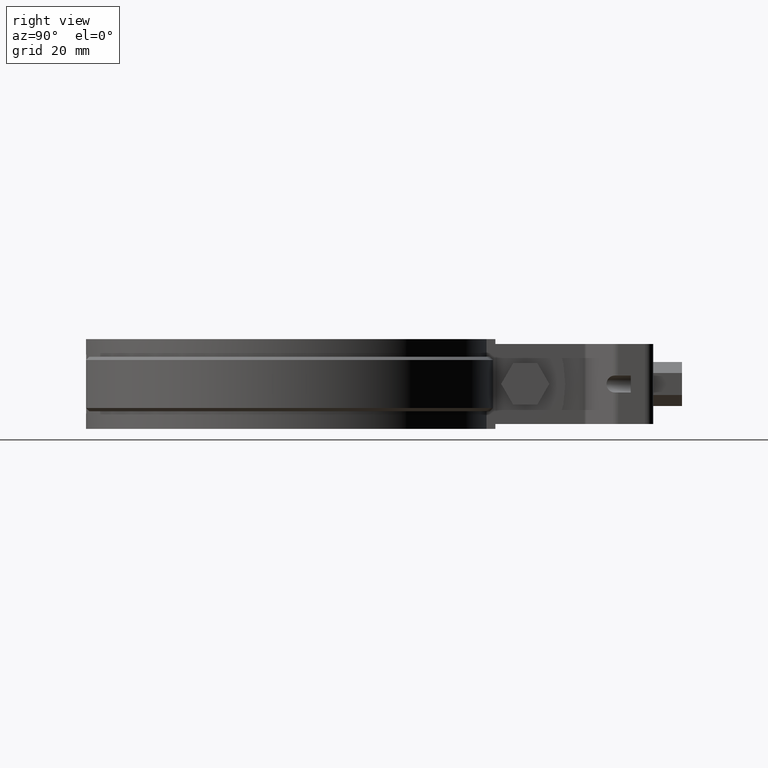
[diagram: clean part render]
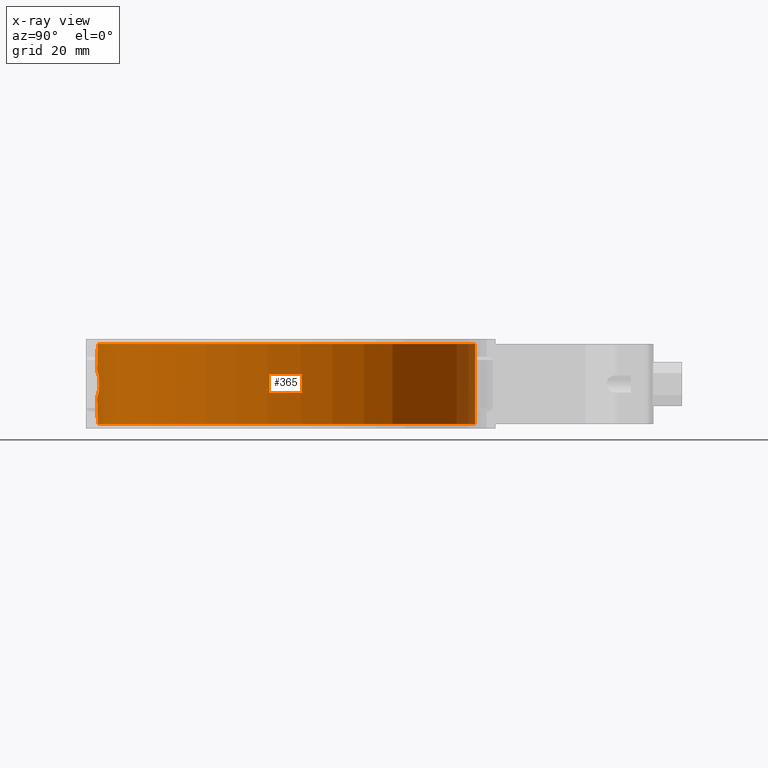
[diagram: x-ray — body ghosted, one internal face saturated and labeled with its STEP entity id]
A machine part, right view, then the same camera in x-ray: the body is ghosted and one INTERNAL B-rep face — a face not visible from any outside direction — is saturated and labeled: STEP entity #365.
In plain terms, the highlighted cylindrical surface (partial cylindrical patch) has radius 59.15 mm, axis along (0, 0, -1).
Its self-contained STEP definition (entity closure, byte-faithful):
#365 = ADVANCED_FACE( '', ( #632, #633 ), #634, .T. );
#632 = FACE_OUTER_BOUND( '', #1358, .T. );
#633 = FACE_BOUND( '', #1359, .T. );
#634 = CYLINDRICAL_SURFACE( '', #1360, 59.1500000000000 );
#1358 = EDGE_LOOP( '', ( #2832, #2833, #2834, #2835 ) );
#1359 = EDGE_LOOP( '', ( #2836, #2837, #2838, #2839, #2840, #2841, #2842, #2843, #2844, #2845, #2846, #2847, #2848, #2849, #2850, #2851 ) );
#1360 = AXIS2_PLACEMENT_3D( '', #2852, #2853, #2854 );
#2832 = ORIENTED_EDGE( '', *, *, #4294, .F. );
#2833 = ORIENTED_EDGE( '', *, *, #4306, .T. );
#2834 = ORIENTED_EDGE( '', *, *, #4307, .T. );
#2835 = ORIENTED_EDGE( '', *, *, #4300, .F. );
#2836 = ORIENTED_EDGE( '', *, *, #4308, .F. );
#2837 = ORIENTED_EDGE( '', *, *, #4309, .F. );
#2838 = ORIENTED_EDGE( '', *, *, #4310, .F. );
#2839 = ORIENTED_EDGE( '', *, *, #4311, .F. );
#2840 = ORIENTED_EDGE( '', *, *, #4312, .F. );
#2841 = ORIENTED_EDGE( '', *, *, #4313, .F. );
#2842 = ORIENTED_EDGE( '', *, *, #4314, .F. );
#2843 = ORIENTED_EDGE( '', *, *, #4315, .F. );
#2844 = ORIENTED_EDGE( '', *, *, #4316, .F. );
#2845 = ORIENTED_EDGE( '', *, *, #4317, .F. );
#2846 = ORIENTED_EDGE( '', *, *, #4318, .F. );
#2847 = ORIENTED_EDGE( '', *, *, #4319, .F. );
#2848 = ORIENTED_EDGE( '', *, *, #4320, .F. );
#2849 = ORIENTED_EDGE( '', *, *, #4321, .F. );
#2850 = ORIENTED_EDGE( '', *, *, #4322, .F. );
#2851 = ORIENTED_EDGE( '', *, *, #4323, .F. );
#2852 = CARTESIAN_POINT( '', ( 0.000000000000000, 3.46944695195361E-014, -14.0000000000000 ) );
#2853 = DIRECTION( '', ( 0.000000000000000, 0.000000000000000, -1.00000000000000 ) );
#2854 = DIRECTION( '', ( -0.0845308537616220, -0.996420862267712, 0.000000000000000 ) );
#4294 = EDGE_CURVE( '', #4952, #4954, #4955, .T. );
#4300 = EDGE_CURVE( '', #4954, #4965, #4966, .T. );
#4306 = EDGE_CURVE( '', #4952, #4975, #4976, .T. );
#4307 = EDGE_CURVE( '', #4975, #4965, #4977, .T. );
#4308 = EDGE_CURVE( '', #4978, #4979, #4980, .T. );
#4309 = EDGE_CURVE( '', #4981, #4978, #4982, .F. );
#4310 = EDGE_CURVE( '', #4983, #4981, #4984, .T. );
#4311 = EDGE_CURVE( '', #4985, #4983, #4986, .F. );
#4312 = EDGE_CURVE( '', #4987, #4985, #4988, .T. );
#4313 = EDGE_CURVE( '', #4989, #4987, #4990, .F. );
#4314 = EDGE_CURVE( '', #4991, #4989, #4992, .T. );
#4315 = EDGE_CURVE( '', #4993, #4991, #4994, .F. );
#4316 = EDGE_CURVE( '', #4995, #4993, #4996, .T. );
#4317 = EDGE_CURVE( '', #4997, #4995, #4998, .F. );
#4318 = EDGE_CURVE( '', #4999, #4997, #5000, .T. );
#4319 = EDGE_CURVE( '', #5001, #4999, #5002, .F. );
#4320 = EDGE_CURVE( '', #5003, #5001, #5004, .T. );
#4321 = EDGE_CURVE( '', #5005, #5003, #5006, .F. );
#4322 = EDGE_CURVE( '', #5007, #5005, #5008, .T. );
#4323 = EDGE_CURVE( '', #4979, #5007, #5009, .F. );
#4952 = VERTEX_POINT( '', #7057 );
#4954 = VERTEX_POINT( '', #7059 );
#4955 = LINE( '', #7060, #7061 );
#4965 = VERTEX_POINT( '', #7089 );
#4966 = CIRCLE( '', #7090, 59.1500000000000 );
#4975 = VERTEX_POINT( '', #7102 );
#4976 = CIRCLE( '', #7103, 59.1500000000000 );
#4977 = LINE( '', #7104, #7105 );
#4978 = VERTEX_POINT( '', #7106 );
#4979 = VERTEX_POINT( '', #7107 );
#4980 = B_SPLINE_CURVE_WITH_KNOTS( '', 3, ( #7108, #7109, #7110, #7111, #7112, #7113, #7114, #7115, #7116, #7117, #7118, #7119, #7120, #7121, #7122, #7123, #7124, #7125, #7126, #7127, #7128, #7129, #7130, #7131, #7132, #7133, #7134, #7135, #7136, #7137, #7138, #7139, #7140, #7141 ), .UNSPECIFIED., .F., .F., ( 4, 2, 2, 2, 2, 2, 2, 2, 2, 2, 2, 2, 2, 2, 2, 2, 4 ), ( 9.69739903612216E-018, 0.000685840484445844, 0.00137168096889168, 0.00205752145333751, 0.00274336193778335, 0.00342920242222918, 0.00411504290667501, 0.00480088339112085, 0.00548672387556668, 0.00617256436001252, 0.00685840484445836, 0.00754424532890419, 0.00823008581335003, 0.00891592629779586, 0.00960176678224170, 0.0102876072666875, 0.0109734477511334 ), .UNSPECIFIED. );
#4981 = VERTEX_POINT( '', #7142 );
#4982 = CIRCLE( '', #7143, 59.1500000000000 );
#4983 = VERTEX_POINT( '', #7144 );
#4984 = B_SPLINE_CURVE_WITH_KNOTS( '', 3, ( #7145, #7146, #7147, #7148, #7149, #7150 ), .UNSPECIFIED., .F., .F., ( 4, 2, 4 ), ( 0.000000000000000, 0.000335831481587550, 0.000671662963175100 ), .UNSPECIFIED. );
#4985 = VERTEX_POINT( '', #7151 );
#4986 = ELLIPSE( '', #7152, 269.461386027856, 59.1500000000000 );
#4987 = VERTEX_POINT( '', #7153 );
#4988 = B_SPLINE_CURVE_WITH_KNOTS( '', 3, ( #7154, #7155, #7156, #7157, #7158, #7159, #7160, #7161, #7162, #7163 ), .UNSPECIFIED., .F., .F., ( 4, 2, 2, 2, 4 ), ( 0.000000000000000, 0.000671559393518246, 0.00134311878703649, 0.00201467818055474, 0.00268623757407299 ), .UNSPECIFIED. );
#4989 = VERTEX_POINT( '', #7164 );
#4990 = ELLIPSE( '', #7165, 269.461248569451, 59.1500000000000 );
#4991 = VERTEX_POINT( '', #7166 );
#4992 = B_SPLINE_CURVE_WITH_KNOTS( '', 3, ( #7167, #7168, #7169, #7170, #7171, #7172 ), .UNSPECIFIED., .F., .F., ( 4, 2, 4 ), ( 0.000000000000000, 0.000335830453991692, 0.000671660907983384 ), .UNSPECIFIED. );
#4993 = VERTEX_POINT( '', #7173 );
#4994 = CIRCLE( '', #7174, 59.1500000000000 );
#4995 = VERTEX_POINT( '', #7175 );
#4996 = B_SPLINE_CURVE_WITH_KNOTS( '', 3, ( #7176, #7177, #7178, #7179, #7180, #7181, #7182, #7183, #7184, #7185, #7186, #7187, #7188, #7189, #7190, #7191, #7192, #7193, #7194, #7195, #7196, #7197, #7198, #7199, #7200, #7201, #7202, #7203, #7204, #7205, #7206, #7207, #7208, #7209 ), .UNSPECIFIED., .F., .F., ( 4, 2, 2, 2, 2, 2, 2, 2, 2, 2, 2, 2, 2, 2, 2, 2, 4 ), ( 0.000000000000000, 0.000685840484445824, 0.00137168096889165, 0.00205752145333747, 0.00274336193778330, 0.00342920242222912, 0.00411504290667495, 0.00480088339112077, 0.00548672387556660, 0.00617256436001242, 0.00685840484445824, 0.00754424532890407, 0.00823008581334989, 0.00891592629779571, 0.00960176678224154, 0.0102876072666874, 0.0109734477511332 ), .UNSPECIFIED. );
#4997 = VERTEX_POINT( '', #7210 );
#4998 = CIRCLE( '', #7211, 59.1500000000000 );
#4999 = VERTEX_POINT( '', #7212 );
#5000 = B_SPLINE_CURVE_WITH_KNOTS( '', 3, ( #7213, #7214, #7215, #7216, #7217, #7218 ), .UNSPECIFIED., .F., .F., ( 4, 2, 4 ), ( 0.000000000000000, 0.000335831481587561, 0.000671662963175122 ), .UNSPECIFIED. );
#5001 = VERTEX_POINT( '', #7219 );
#5002 = ELLIPSE( '', #7220, 269.461386027932, 59.1500000000000 );
#5003 = VERTEX_POINT( '', #7221 );
#5004 = B_SPLINE_CURVE_WITH_KNOTS( '', 3, ( #7222, #7223, #7224, #7225, #7226, #7227, #7228, #7229, #7230, #7231 ), .UNSPECIFIED., .F., .F., ( 4, 2, 2, 2, 4 ), ( 0.000000000000000, 0.000671559393518249, 0.00134311878703650, 0.00201467818055475, 0.00268623757407300 ), .UNSPECIFIED. );
#5005 = VERTEX_POINT( '', #7232 );
#5006 = ELLIPSE( '', #7233, 269.461248569451, 59.1500000000000 );
#5007 = VERTEX_POINT( '', #7234 );
#5008 = B_SPLINE_CURVE_WITH_KNOTS( '', 3, ( #7235, #7236, #7237, #7238, #7239, #7240 ), .UNSPECIFIED., .F., .F., ( 4, 2, 4 ), ( 0.000000000000000, 0.000335830453991760, 0.000671660907983519 ), .UNSPECIFIED. );
#5009 = CIRCLE( '', #7241, 59.1500000000000 );
#7057 = CARTESIAN_POINT( '', ( -6.66210780370072, 58.7736235024852, -12.5000000000000 ) );
#7059 = CARTESIAN_POINT( '', ( -6.66210780370077, 58.7736235024851, 12.5000000000000 ) );
#7060 = CARTESIAN_POINT( '', ( -6.66210780370072, 58.7736235024852, -14.0000000000000 ) );
#7061 = VECTOR( '', #8905, 1000.00000000000 );
#7089 = CARTESIAN_POINT( '', ( 6.66210780370074, 58.7736235024851, 12.5000000000000 ) );
#7090 = AXIS2_PLACEMENT_3D( '', #8912, #8913, #8914 );
#7102 = CARTESIAN_POINT( '', ( 6.66210780370075, 58.7736235024851, -12.5000000000000 ) );
#7103 = AXIS2_PLACEMENT_3D( '', #8924, #8925, #8926 );
#7104 = CARTESIAN_POINT( '', ( 6.66210780370075, 58.7736235024851, -14.0000000000000 ) );
#7105 = VECTOR( '', #8927, 1000.00000000000 );
#7106 = CARTESIAN_POINT( '', ( 5.00000000000003, -58.9382940031352, -3.49999999999999 ) );
#7107 = CARTESIAN_POINT( '', ( 4.99999999999998, -58.9382940031352, 3.49999999999999 ) );
#7108 = CARTESIAN_POINT( '', ( 5.00000000000003, -58.9382940031352, -3.50000000000004 ) );
#7109 = CARTESIAN_POINT( '', ( 5.23108472953870, -58.9186900484019, -3.50000000000005 ) );
#7110 = CARTESIAN_POINT( '', ( 5.45819630642193, -58.8980553882998, -3.47733987116120 ) );
#7111 = CARTESIAN_POINT( '', ( 5.90483281279597, -58.8549554829124, -3.38867437439389 ) );
#7112 = CARTESIAN_POINT( '', ( 6.12663036380665, -58.8322377638681, -3.32161878510515 ) );
#7113 = CARTESIAN_POINT( '', ( 6.54985499710422, -58.7866243242112, -3.14648960242452 ) );
#7114 = CARTESIAN_POINT( '', ( 6.75056696535412, -58.7638403280690, -3.03934362483283 ) );
#7115 = CARTESIAN_POINT( '', ( 7.13046567819296, -58.7189538706935, -2.78625382261612 ) );
#7116 = CARTESIAN_POINT( '', ( 7.31051535566461, -58.6967236501176, -2.63885514677865 ) );
#7117 = CARTESIAN_POINT( '', ( 7.63349595950092, -58.6555942895473, -2.31662183485662 ) );
#7118 = CARTESIAN_POINT( '', ( 7.77849157376942, -58.6364586331887, -2.14076483153373 ) );
#7119 = CARTESIAN_POINT( '', ( 8.03472267801004, -58.6018979529871, -1.75879156155892 ) );
#7120 = CARTESIAN_POINT( '', ( 8.14403067117517, -58.5867314208868, -1.55472622131932 ) );
#7121 = CARTESIAN_POINT( '', ( 8.31932961901536, -58.5620960079670, -1.13320490860008 ) );
#7122 = CARTESIAN_POINT( '', ( 8.38677917544447, -58.5524254931442, -0.912778948258094 ) );
#7123 = CARTESIAN_POINT( '', ( 8.47740967954881, -58.5393724017687, -0.459413225960784 ) );
#7124 = CARTESIAN_POINT( '', ( 8.49981926058052, -58.5361048633271, -0.231619601638268 ) );
#7125 = CARTESIAN_POINT( '', ( 8.50017858271889, -58.5360526863133, 0.226124712646311 ) );
#7126 = CARTESIAN_POINT( '', ( 8.47740917893714, -58.5393721009278, 0.458600165287515 ) );
#7127 = CARTESIAN_POINT( '', ( 8.38772872888854, -58.5522891023792, 0.908835941642526 ) );
#7128 = CARTESIAN_POINT( '', ( 8.32137719446028, -58.5618054638645, 1.12746850434298 ) );
#7129 = CARTESIAN_POINT( '', ( 8.14559362537555, -58.5865145070966, 1.55176429916493 ) );
#7130 = CARTESIAN_POINT( '', ( 8.03571203668990, -58.6017595818350, 1.75684685243296 ) );
#7131 = CARTESIAN_POINT( '', ( 7.78193311994009, -58.6359992746825, 2.13609610008257 ) );
#7132 = CARTESIAN_POINT( '', ( 7.63715711120223, -58.6551228864835, 2.31272799926857 ) );
#7133 = CARTESIAN_POINT( '', ( 7.31049668957843, -58.6967311502210, 2.63911225134749 ) );
#7134 = CARTESIAN_POINT( '', ( 7.13372425938852, -58.7185558813006, 2.78370983069290 ) );
#7135 = CARTESIAN_POINT( '', ( 6.75516974813841, -58.7633092011354, 3.03664268425166 ) );
#7136 = CARTESIAN_POINT( '', ( 6.55091862757238, -58.7865057023843, 3.14596549535335 ) );
#7137 = CARTESIAN_POINT( '', ( 6.12775257217611, -58.8321207842767, 3.32123796546634 ) );
#7138 = CARTESIAN_POINT( '', ( 5.91000018107457, -58.8544389990636, 3.38733337480229 ) );
#7139 = CARTESIAN_POINT( '', ( 5.46223010274415, -58.8976836075875, 3.47684786174522 ) );
#7140 = CARTESIAN_POINT( '', ( 5.23108267661422, -58.9186902225607, 3.49999999999999 ) );
#7141 = CARTESIAN_POINT( '', ( 4.99999999999998, -58.9382940031352, 3.49999999999999 ) );
#7142 = CARTESIAN_POINT( '', ( 1.65000000000005, -59.1269819963779, -3.49999999999999 ) );
#7143 = AXIS2_PLACEMENT_3D( '', #8928, #8929, #8930 );
#7144 = CARTESIAN_POINT( '', ( 1.16219512100915, -59.1385813365581, -3.89024390662630 ) );
#7145 = CARTESIAN_POINT( '', ( 1.16219512100915, -59.1385813365581, -3.89024390662630 ) );
#7146 = CARTESIAN_POINT( '', ( 1.18712176025611, -59.1380914766755, -3.77945883886600 ) );
#7147 = CARTESIAN_POINT( '', ( 1.24902115300256, -59.1368777571282, -3.68045980007246 ) );
#7148 = CARTESIAN_POINT( '', ( 1.42634210307314, -59.1328666048516, -3.53862475115000 ) );
#7149 = CARTESIAN_POINT( '', ( 1.53648944153045, -59.1301496267076, -3.50000000000003 ) );
#7150 = CARTESIAN_POINT( '', ( 1.65000000000005, -59.1269819963779, -3.50000000000003 ) );
#7151 = CARTESIAN_POINT( '', ( 0.975609999999987, -59.1419536803435, -4.71951200000003 ) );
#7152 = AXIS2_PLACEMENT_3D( '', #8931, #8932, #8933 );
#7153 = CARTESIAN_POINT( '', ( -0.975609757981832, -59.1419536843359, -4.71951218674745 ) );
#7154 = CARTESIAN_POINT( '', ( -0.975609757981832, -59.1419536843359, -4.71951218674745 ) );
#7155 = CARTESIAN_POINT( '', ( -0.925764000266897, -59.1427759434023, -4.94104879757686 ) );
#7156 = CARTESIAN_POINT( '', ( -0.802006839384732, -59.1448284066473, -5.13901853152155 ) );
#7157 = CARTESIAN_POINT( '', ( -0.447387521711694, -59.1485738342658, -5.42271559104646 ) );
#7158 = CARTESIAN_POINT( '', ( -0.227075775181514, -59.1500000017834, -5.50000008621365 ) );
#7159 = CARTESIAN_POINT( '', ( 0.227076704276916, -59.1499999982166, -5.49999992065342 ) );
#7160 = CARTESIAN_POINT( '', ( 0.447393780783083, -59.1485737775223, -5.42271183234166 ) );
#7161 = CARTESIAN_POINT( '', ( 0.802006826849411, -59.1448283974158, -5.13901761295265 ) );
#7162 = CARTESIAN_POINT( '', ( 0.925764284607063, -59.1427759389158, -4.94104862074254 ) );
#7163 = CARTESIAN_POINT( '', ( 0.975609999999987, -59.1419536803435, -4.71951200000003 ) );
#7164 = CARTESIAN_POINT( '', ( -1.16219500000001, -59.1385813389362, -3.89024400000000 ) );
#7165 = AXIS2_PLACEMENT_3D( '', #8934, #8935, #8936 );
#7166 = CARTESIAN_POINT( '', ( -1.64999999999996, -59.1269819963779, -3.50000000000002 ) );
#7167 = CARTESIAN_POINT( '', ( -1.64999999999996, -59.1269819963779, -3.50000000000002 ) );
#7168 = CARTESIAN_POINT( '', ( -1.53648941365402, -59.1301496274855, -3.49999999951284 ) );
#7169 = CARTESIAN_POINT( '', ( -1.42634195765584, -59.1328666075620, -3.53862500442069 ) );
#7170 = CARTESIAN_POINT( '', ( -1.24902207049613, -59.1368777369528, -3.68045885717108 ) );
#7171 = CARTESIAN_POINT( '', ( -1.18712164587725, -59.1380914789743, -3.77945890499200 ) );
#7172 = CARTESIAN_POINT( '', ( -1.16219500000001, -59.1385813389362, -3.89024400000000 ) );
#7173 = CARTESIAN_POINT( '', ( -4.99999999999992, -58.9382940031352, -3.49999999999999 ) );
#7174 = AXIS2_PLACEMENT_3D( '', #8937, #8938, #8939 );
#7175 = CARTESIAN_POINT( '', ( -4.99999999999992, -58.9382940031352, 3.49999999999996 ) );
#7176 = CARTESIAN_POINT( '', ( -4.99999999999992, -58.9382940031352, 3.49999999999996 ) );
#7177 = CARTESIAN_POINT( '', ( -5.23108472953859, -58.9186900484019, 3.49999999999996 ) );
#7178 = CARTESIAN_POINT( '', ( -5.45819630642181, -58.8980553882998, 3.47733987116112 ) );
#7179 = CARTESIAN_POINT( '', ( -5.90483281279584, -58.8549554829124, 3.38867437439382 ) );
#7180 = CARTESIAN_POINT( '', ( -6.12663036380651, -58.8322377638681, 3.32161878510507 ) );
#7181 = CARTESIAN_POINT( '', ( -6.54985499710408, -58.7866243242112, 3.14648960242444 ) );
#7182 = CARTESIAN_POINT( '', ( -6.75056696535398, -58.7638403280690, 3.03934362483276 ) );
#7183 = CARTESIAN_POINT( '', ( -7.13046567819280, -58.7189538706935, 2.78625382261606 ) );
#7184 = CARTESIAN_POINT( '', ( -7.31051535566445, -58.6967236501177, 2.63885514677858 ) );
#7185 = CARTESIAN_POINT( '', ( -7.63349595950076, -58.6555942895473, 2.31662183485656 ) );
#7186 = CARTESIAN_POINT( '', ( -7.77849157376927, -58.6364586331887, 2.14076483153368 ) );
#7187 = CARTESIAN_POINT( '', ( -8.03472267800989, -58.6018979529872, 1.75879156155888 ) );
#7188 = CARTESIAN_POINT( '', ( -8.14403067117501, -58.5867314208869, 1.55472622131928 ) );
#7189 = CARTESIAN_POINT( '', ( -8.31932961901520, -58.5620960079670, 1.13320490860005 ) );
#7190 = CARTESIAN_POINT( '', ( -8.38677917544431, -58.5524254931442, 0.912778948258069 ) );
#7191 = CARTESIAN_POINT( '', ( -8.47740967954866, -58.5393724017687, 0.459413225960766 ) );
#7192 = CARTESIAN_POINT( '', ( -8.49981926058036, -58.5361048633271, 0.231619601638253 ) );
#7193 = CARTESIAN_POINT( '', ( -8.50017858271874, -58.5360526863133, -0.226124712646318 ) );
#7194 = CARTESIAN_POINT( '', ( -8.47740917893700, -58.5393721009278, -0.458600165287517 ) );
#7195 = CARTESIAN_POINT( '', ( -8.38772872888840, -58.5522891023792, -0.908835941642524 ) );
#7196 = CARTESIAN_POINT( '', ( -8.32137719446014, -58.5618054638645, -1.12746850434297 ) );
#7197 = CARTESIAN_POINT( '', ( -8.14559362537542, -58.5865145070966, -1.55176429916492 ) );
#7198 = CARTESIAN_POINT( '', ( -8.03571203668978, -58.6017595818350, -1.75684685243295 ) );
#7199 = CARTESIAN_POINT( '', ( -7.78193311993997, -58.6359992746825, -2.13609610008255 ) );
#7200 = CARTESIAN_POINT( '', ( -7.63715711120212, -58.6551228864835, -2.31272799926855 ) );
#7201 = CARTESIAN_POINT( '', ( -7.31049668957832, -58.6967311502211, -2.63911225134747 ) );
#7202 = CARTESIAN_POINT( '', ( -7.13372425938842, -58.7185558813006, -2.78370983069288 ) );
#7203 = CARTESIAN_POINT( '', ( -6.75516974813832, -58.7633092011354, -3.03664268425164 ) );
#7204 = CARTESIAN_POINT( '', ( -6.55091862757229, -58.7865057023843, -3.14596549535333 ) );
#7205 = CARTESIAN_POINT( '', ( -6.12775257217603, -58.8321207842767, -3.32123796546633 ) );
#7206 = CARTESIAN_POINT( '', ( -5.91000018107450, -58.8544389990637, -3.38733337480228 ) );
#7207 = CARTESIAN_POINT( '', ( -5.46223010274409, -58.8976836075875, -3.47684786174521 ) );
#7208 = CARTESIAN_POINT( '', ( -5.23108267661416, -58.9186902225607, -3.49999999999999 ) );
#7209 = CARTESIAN_POINT( '', ( -4.99999999999992, -58.9382940031352, -3.49999999999999 ) );
#7210 = CARTESIAN_POINT( '', ( -1.65000000000001, -59.1269819963779, 3.49999999999999 ) );
#7211 = AXIS2_PLACEMENT_3D( '', #8940, #8941, #8942 );
#7212 = CARTESIAN_POINT( '', ( -1.16219512100910, -59.1385813365581, 3.89024390662628 ) );
#7213 = CARTESIAN_POINT( '', ( -1.16219512100910, -59.1385813365581, 3.89024390662628 ) );
#7214 = CARTESIAN_POINT( '', ( -1.18712176025606, -59.1380914766755, 3.77945883886597 ) );
#7215 = CARTESIAN_POINT( '', ( -1.24902115300251, -59.1368777571282, 3.68045980007243 ) );
#7216 = CARTESIAN_POINT( '', ( -1.42634210307309, -59.1328666048516, 3.53862475114997 ) );
#7217 = CARTESIAN_POINT( '', ( -1.53648944153041, -59.1301496267076, 3.49999999999999 ) );
#7218 = CARTESIAN_POINT( '', ( -1.65000000000001, -59.1269819963779, 3.49999999999999 ) );
#7219 = CARTESIAN_POINT( '', ( -0.975609999999988, -59.1419536803435, 4.71951200000001 ) );
#7220 = AXIS2_PLACEMENT_3D( '', #8943, #8944, #8945 );
#7221 = CARTESIAN_POINT( '', ( 0.975609757981834, -59.1419536843359, 4.71951218674745 ) );
#7222 = CARTESIAN_POINT( '', ( 0.975609757981834, -59.1419536843359, 4.71951218674745 ) );
#7223 = CARTESIAN_POINT( '', ( 0.925764000266897, -59.1427759434023, 4.94104879757687 ) );
#7224 = CARTESIAN_POINT( '', ( 0.802006839384731, -59.1448284066473, 5.13901853152156 ) );
#7225 = CARTESIAN_POINT( '', ( 0.447387521711689, -59.1485738342658, 5.42271559104646 ) );
#7226 = CARTESIAN_POINT( '', ( 0.227075775181507, -59.1500000017834, 5.50000008621365 ) );
#7227 = CARTESIAN_POINT( '', ( -0.227076704276925, -59.1499999982166, 5.49999992065342 ) );
#7228 = CARTESIAN_POINT( '', ( -0.447393780783092, -59.1485737775223, 5.42271183234166 ) );
#7229 = CARTESIAN_POINT( '', ( -0.802006826849418, -59.1448283974158, 5.13901761295264 ) );
#7230 = CARTESIAN_POINT( '', ( -0.925764284607068, -59.1427759389158, 4.94104862074253 ) );
#7231 = CARTESIAN_POINT( '', ( -0.975609999999988, -59.1419536803435, 4.71951200000001 ) );
#7232 = CARTESIAN_POINT( '', ( 1.16219500000000, -59.1385813389362, 3.89024400000001 ) );
#7233 = AXIS2_PLACEMENT_3D( '', #8946, #8947, #8948 );
#7234 = CARTESIAN_POINT( '', ( 1.65000000000007, -59.1269819963779, 3.49999999999997 ) );
#7235 = CARTESIAN_POINT( '', ( 1.65000000000007, -59.1269819963779, 3.49999999999997 ) );
#7236 = CARTESIAN_POINT( '', ( 1.53648941365411, -59.1301496274855, 3.49999999951279 ) );
#7237 = CARTESIAN_POINT( '', ( 1.42634195765590, -59.1328666075620, 3.53862500442063 ) );
#7238 = CARTESIAN_POINT( '', ( 1.24902207049616, -59.1368777369528, 3.68045885717104 ) );
#7239 = CARTESIAN_POINT( '', ( 1.18712164587726, -59.1380914789743, 3.77945890499198 ) );
#7240 = CARTESIAN_POINT( '', ( 1.16219500000000, -59.1385813389362, 3.89024400000001 ) );
#7241 = AXIS2_PLACEMENT_3D( '', #8949, #8950, #8951 );
#8905 = DIRECTION( '', ( 0.000000000000000, 0.000000000000000, 1.00000000000000 ) );
#8912 = CARTESIAN_POINT( '', ( -1.73472347597681E-015, -6.93889390390723E-015, 12.5000000000000 ) );
#8913 = DIRECTION( '', ( 0.000000000000000, 0.000000000000000, 1.00000000000000 ) );
#8914 = DIRECTION( '', ( 1.00000000000000, 2.77555756156289E-017, 0.000000000000000 ) );
#8924 = CARTESIAN_POINT( '', ( -1.73472347597681E-015, -6.93889390390723E-015, -12.5000000000000 ) );
#8925 = DIRECTION( '', ( 0.000000000000000, 0.000000000000000, 1.00000000000000 ) );
#8926 = DIRECTION( '', ( 1.00000000000000, 2.77555756156289E-017, 0.000000000000000 ) );
#8927 = DIRECTION( '', ( 0.000000000000000, 0.000000000000000, 1.00000000000000 ) );
#8928 = CARTESIAN_POINT( '', ( 0.000000000000000, 0.000000000000000, -3.49999999999999 ) );
#8929 = DIRECTION( '', ( -6.12303176911189E-017, 0.000000000000000, -1.00000000000000 ) );
#8930 = DIRECTION( '', ( -1.00000000000000, 0.000000000000000, 6.12303176911189E-017 ) );
#8931 = CARTESIAN_POINT( '', ( 0.000000000000000, 0.000000000000000, -9.05556109223489 ) );
#8932 = DIRECTION( '', ( 0.975609806487704, 0.000000000000000, -0.219511971165639 ) );
#8933 = DIRECTION( '', ( 0.219511971165639, 0.000000000000000, 0.975609806487704 ) );
#8934 = CARTESIAN_POINT( '', ( 0.000000000000000, 0.000000000000000, -9.05555787944973 ) );
#8935 = DIRECTION( '', ( -0.975609781292646, 0.000000000000000, -0.219512083143765 ) );
#8936 = DIRECTION( '', ( -0.219512083143765, 0.000000000000000, 0.975609781292646 ) );
#8937 = CARTESIAN_POINT( '', ( 0.000000000000000, 0.000000000000000, -3.49999999999999 ) );
#8938 = DIRECTION( '', ( -6.12303176911189E-017, 0.000000000000000, -1.00000000000000 ) );
#8939 = DIRECTION( '', ( -1.00000000000000, 0.000000000000000, 6.12303176911189E-017 ) );
#8940 = CARTESIAN_POINT( '', ( 0.000000000000000, 0.000000000000000, 3.49999999999999 ) );
#8941 = DIRECTION( '', ( 6.12303176911189E-017, 0.000000000000000, 1.00000000000000 ) );
#8942 = DIRECTION( '', ( 1.00000000000000, 0.000000000000000, -6.12303176911189E-017 ) );
#8943 = CARTESIAN_POINT( '', ( 0.000000000000000, 0.000000000000000, 9.05556109223615 ) );
#8944 = DIRECTION( '', ( -0.975609806487718, 0.000000000000000, 0.219511971165577 ) );
#8945 = DIRECTION( '', ( 0.219511971165577, 0.000000000000000, 0.975609806487718 ) );
#8946 = CARTESIAN_POINT( '', ( 0.000000000000000, 0.000000000000000, 9.05555787944971 ) );
#8947 = DIRECTION( '', ( 0.975609781292646, 0.000000000000000, 0.219512083143765 ) );
#8948 = DIRECTION( '', ( -0.219512083143765, 0.000000000000000, 0.975609781292646 ) );
#8949 = CARTESIAN_POINT( '', ( 0.000000000000000, 0.000000000000000, 3.49999999999999 ) );
#8950 = DIRECTION( '', ( 6.12303176911189E-017, 0.000000000000000, 1.00000000000000 ) );
#8951 = DIRECTION( '', ( 1.00000000000000, 0.000000000000000, -6.12303176911189E-017 ) );